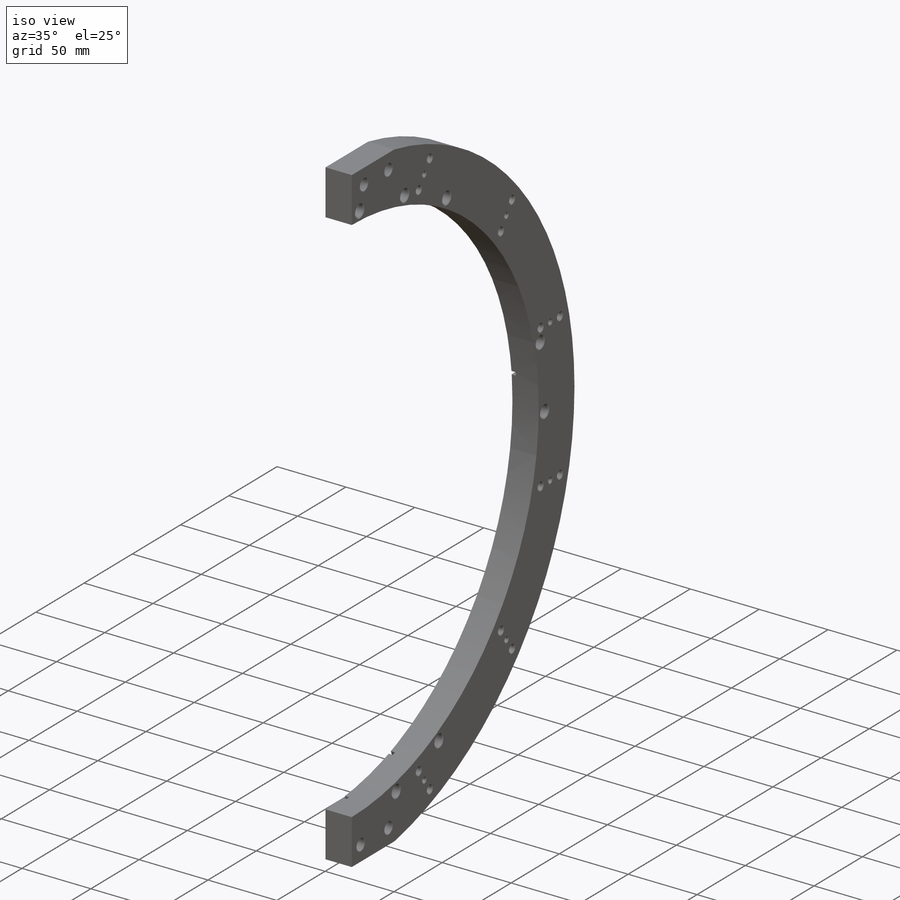
[diagram: iso view]
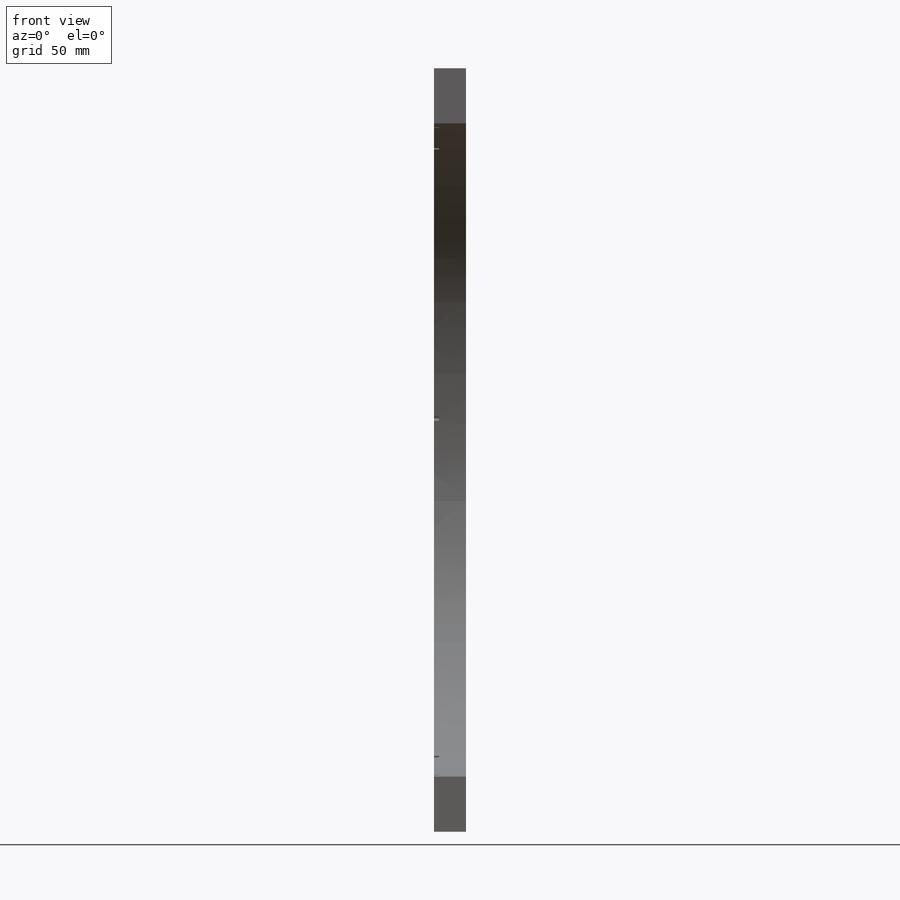
[diagram: front view]
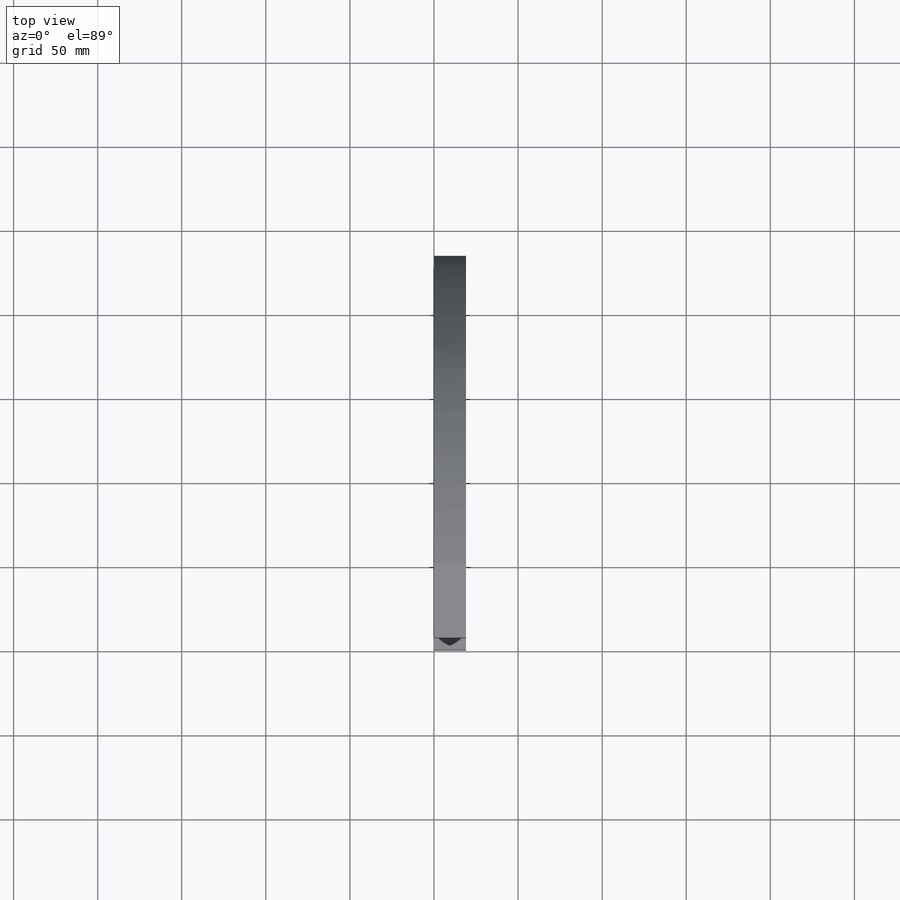
[diagram: top view]
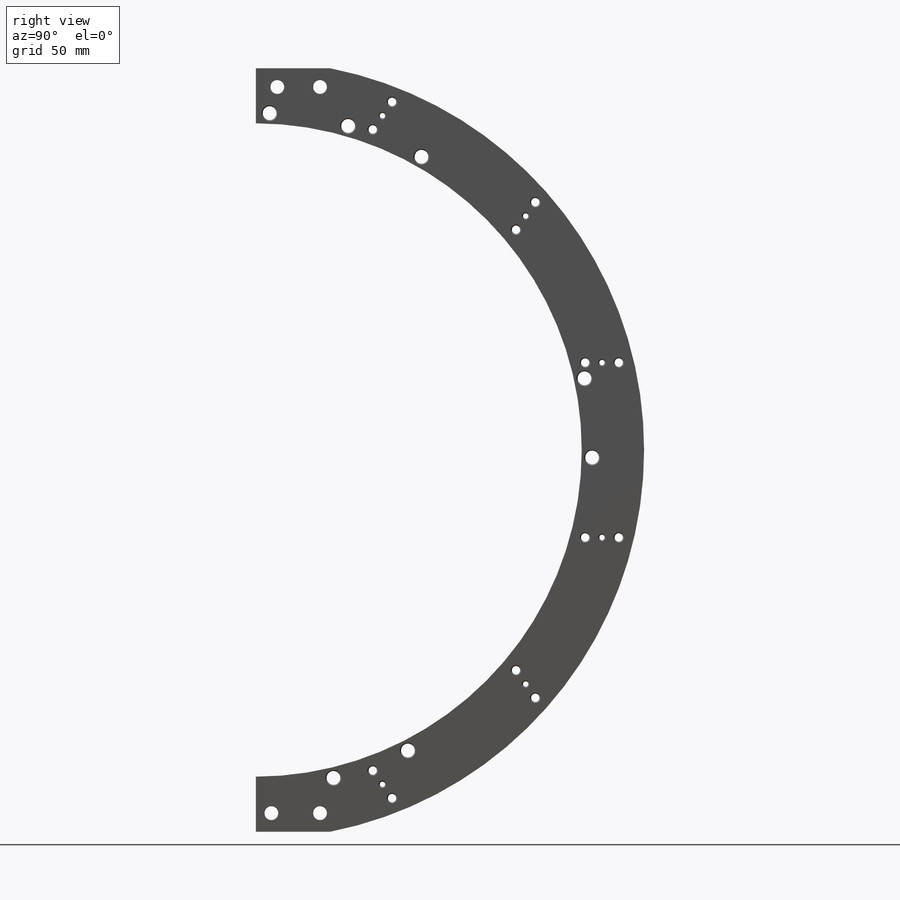
[diagram: right view]
SOLIDWORKS PART (.sldprt)
format: sldprt  version: not decoded by parser v0  size: 931,840 bytes
history: native  units: mm
features: sketch x17, hole x4, plane x3, cut_extrude x3, material x1, pattern_circular x1, fillet x1 + 2 further entries (+12 scaffold rows collapsed)
feature tree (44):
  scaffold x12  (default folders/planes/origin — collapsed)
  material  "Material <not specified>"
  plane  "Plane1"
  plane  "Plane2"
  plane  "Plane3"
  "Axis2"
  "Axis3"
  sketch  "Sketch1"  dims[c1.D9=3.0mm c1.D10=4.0mm c1.D2=6.7625mm c1.D7=4.5mm c1.D1=2.5mm c2.D2=~42.935967mm c3.D2=50.0deg c3.D3=~91.177867mm c4.D2=~100.269623mm c5.D2=~62.654091deg c5.D3=191.2625mm c5.D4=~104.165277mm c5.D5=125.0mm c5.D6=~60.834723mm c6.D4=188.0mm c6.D6=~46.36475mm c6.D1=~5.35288mm c6.D7=14.0mm c7.D1=6.5mm c7.D8=110.0mm c8.D1=~193.33025mm c8.D11=~14.60465mm c8.D6=~57.012213mm c9.D1=~14.686707mm c9.D5=117.5mm c9.D7=1.0mm c10.D5=~120.108474mm c10.D7=~74.340574mm c11.D7=~60.301597deg c11.D1=193.2625mm c11.D3=~57.012213mm c11.D4=~80.17119mm c12.D4=~61.150849deg c12.D5=~3.646559mm c12.D6=115.675mm c12.D7=188.0mm c12.D8=~7.106883mm c12.D2=1.5mm c12.D1=180.0deg c12.D3=38.1mm c13.D4=1.0mm c13.D7=0.0mm]
  sketch  "Sketch81"  dims[D1=0.5mm D2=500.0mm]
  cut_extrude  "Extrude1"  [1 undecoded]
  hole  " Clearance Hole1"  Diameter=4.9784mm Depth=19.05mm
  sketch  "Sketch83"  dims[c1.D1=20.0mm c1.D2=104.0mm c1.D3=216.3mm c1.D4=~195.048929mm c2.D4=55.0deg]
  sketch  "Sketch82"  dims[hole-wizard template sketch: 54 standard entries collapsed; hole parameters kept: c17.Thru Hole Dia.=4.9784mm c17.Thru Hole Depth=19.05mm c17.Far C'Sink Dia.=6.2484mm c17.D4=~2.963249mm c17.Far C'Sink Angle=90.0deg]
  hole  "1/8 (0.125) Diameter Hole1"  Diameter=3.175mm Depth=19.05mm
  sketch  "Sketch85"
  sketch  "Sketch86"  dims[hole-wizard template sketch: 47 standard entries collapsed; hole parameters kept: c15.Thru Hole Depth=19.05mm c15.Near C'Sink Dia.=4.445mm c15.D4=~3.666174mm c15.Near C'Sink Angle=90.0deg c15.Far C'Sink Dia.=4.445mm c15.D6=~9.919017mm c15.Far C'Sink Angle=90.0deg]
  pattern_circular  "CirPattern1"  Count=3 Angle=55deg
  sketch  "Sketch88"  dims[c1.D1=431.8mm c1.D2=50.8mm c2.D1=454.025mm]
  cut_extrude  "Cut-Extrude1"  [1 undecoded]
  hole  "5/16 Clearance Hole1"  Diameter=8.2042mm Depth=19.05mm
  sketch  "Sketch90"  dims[D1=431.8mm D2=12.7mm D3=25.4mm]
  sketch  "Sketch89"  dims[hole-wizard template sketch: 48 standard entries collapsed; hole parameters kept: c15.Near C'Sink Dia.=8.636mm c15.D4=~3.666174mm c15.Near C'Sink Angle=90.0deg c15.Far C'Sink Dia.=8.636mm c15.D6=~9.919017mm c15.Far C'Sink Angle=90.0deg]
  sketch  "Sketch91"  dims[D2=0.5mm D3=0.5mm D1=1.0mm]
  cut_extrude  "Cut-Extrude2"  [1 undecoded]
  hole  "5/16 Clearance Hole2"  Diameter=8.2042mm Depth=19.05mm
  sketch  "Sketch93"  dims[c1.D1=400.9589mm c1.D2=47.3mm c1.D3=~199.73162mm c2.D3=8.8deg c3.D3=~268.351294mm c4.D3=9.25deg c4.D4=47.3mm c4.D5=47.3mm c4.D6=~33.772753mm c4.D7=~268.351294mm c5.D7=84.5deg c5.D8=~268.351294mm c6.D8=95.5deg c7.D8=~199.086105mm c8.D8=174.25deg c9.D8=~77.145158mm c10.D8=137.0deg c10.D6=47.3mm]
  sketch  "Sketch94"  dims[hole-wizard template sketch: 54 standard entries collapsed; hole parameters above]
  sketch  "Sketch95"  dims[c1.D1=6.0mm c2.D1=3.0mm c2.D5=2.4mm c2.D6=1.0mm c2.D7=5.0mm]
  sketch  "Sketch97"  dims[c1.D1=6.0mm c1.Cut-Extrude-Thin7=65536.0 c2.D1=3.0mm c2.D5=2.4mm c2.D6=1.0mm c2.D7=5.0mm]
  sketch  "Sketch98"  dims[c1.D1=6.0mm c1.Cut-Extrude-Thin8=65536.0 c2.D1=3.0mm c2.D5=2.4mm c2.D6=1.0mm c2.D7=5.0mm]
  sketch  "Sketch99"  dims[c1.D1=6.0mm c1.Cut-Extrude-Thin9=65536.0 c2.D1=3.0mm c2.D5=2.4mm c2.D6=1.0mm c2.D7=5.0mm]
  sketch  "Sketch100"  dims[c1.D1=26.84mm c1.D2=6.0mm c1.Cut-Extrude-Thin10=65536.0 c2.D1=3.0mm c2.D5=2.4mm c2.D6=1.0mm c2.D7=5.0mm]
  fillet  "Fillet1"  Radius=1.190625mm
decode coverage: 22 of 26 modeling features carry decoded parameters; 2 rows unclassified (native names shown)
note: ~ marks probable driven/reference dimensions
note: 3 parameter values undecoded
summary: no parameter record found for 3 features; Diameter pulled from absorbed wizard sketch
note: suppression state not decoded; provenance and decode notes live in map.json
